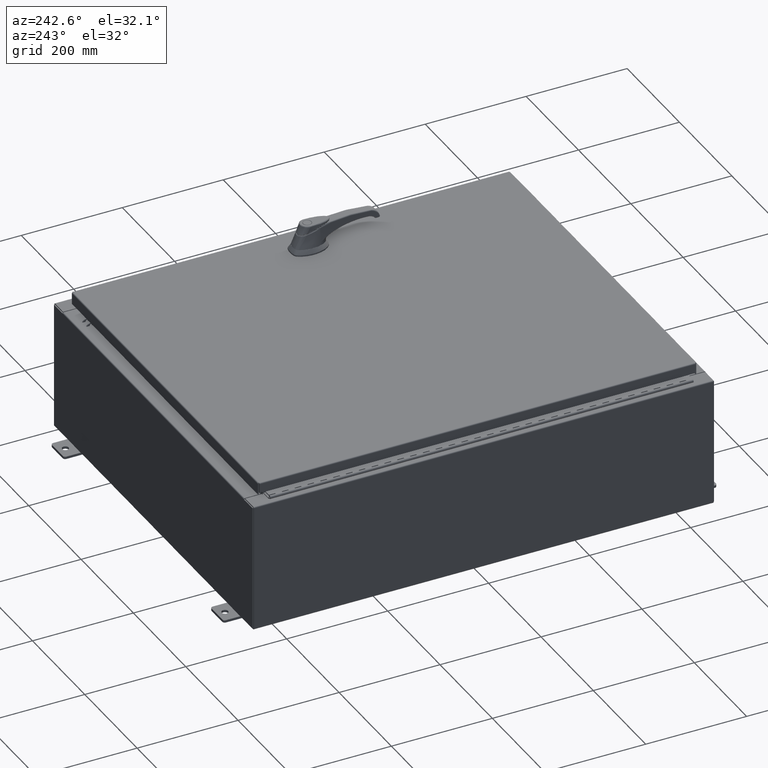
[diagram: clean part render]
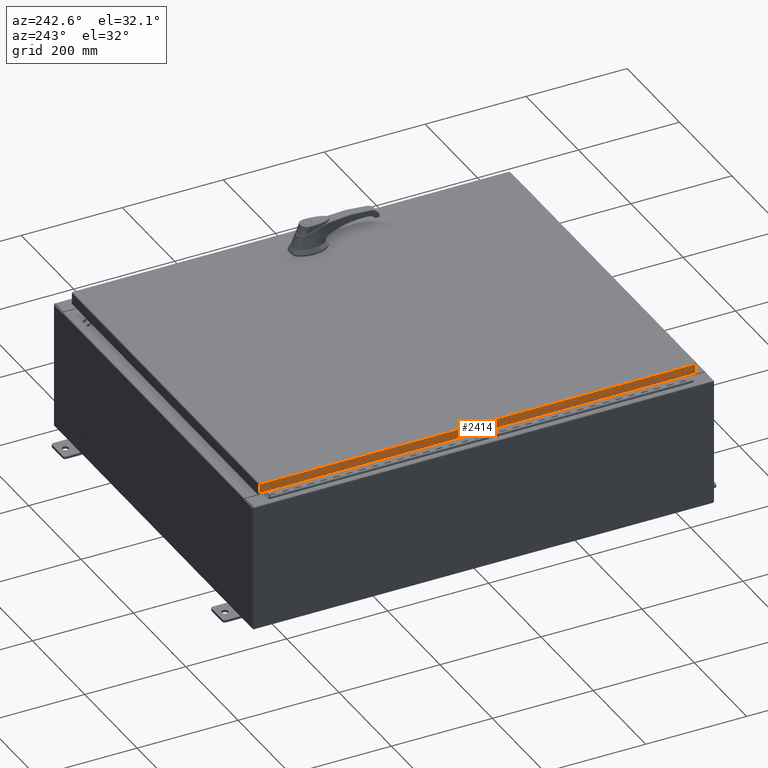
[diagram: same view with one face highlighted and labeled with its STEP entity id]
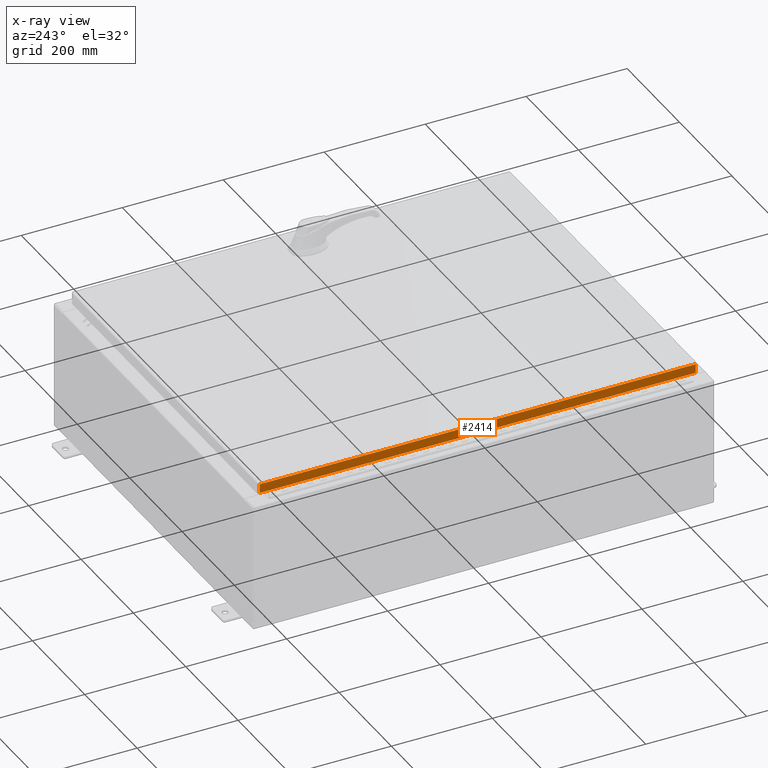
[diagram: x-ray of the same camera — body ghosted, the highlighted face saturated]
A machine part, auxiliary view. The second image highlights one B-rep face of the part: STEP entity #2414.
The next image is the same camera in x-ray: the body ghosted, the highlighted face saturated — about 0% of this face is hidden behind the body in this view.
In plain terms, the highlighted planar face has unit normal (1, 0, -0).
Its self-contained STEP definition (entity closure, byte-faithful):
#905 = EDGE_LOOP ( 'NONE', ( #20124, #60852, #11152, #17191 ) ) ;
#2414 = ADVANCED_FACE ( 'NONE', ( #12163 ), #44736, .F. ) ;
#5312 = CARTESIAN_POINT ( 'NONE',  ( -14.07800000000000700, 17.00515786437627200, 1.617215720887851800E-013 ) ) ;
#6678 = EDGE_CURVE ( 'NONE', #122592, #61293, #32694, .T. ) ;
#11152 = ORIENTED_EDGE ( 'NONE', *, *, #58809, .F. ) ;
#12163 = FACE_OUTER_BOUND ( 'NONE', #905, .T. ) ;
#14144 = CARTESIAN_POINT ( 'NONE',  ( -14.07800000000000800, -17.00515786437626500, -0.7949999999999996000 ) ) ;
#17191 = ORIENTED_EDGE ( 'NONE', *, *, #6678, .F. ) ;
#20124 = ORIENTED_EDGE ( 'NONE', *, *, #112585, .F. ) ;
#22717 = VECTOR ( 'NONE', #46805, 39.37007874015748100 ) ;
#27099 = CARTESIAN_POINT ( 'NONE',  ( -14.07800000000000700, 17.00515786437627200, -0.08770000000000004200 ) ) ;
#27748 = CARTESIAN_POINT ( 'NONE',  ( -14.07800000000000800, 17.00515786437627600, -0.7949999999999954900 ) ) ;
#28377 = CARTESIAN_POINT ( 'NONE',  ( -14.07800000000000800, -17.09400000000000100, -0.7949999999999997100 ) ) ;
#30070 = LINE ( 'NONE', #5312, #78027 ) ;
#32694 = LINE ( 'NONE', #51359, #106208 ) ;
#33421 = DIRECTION ( 'NONE',  ( 3.757920914826097400E-031, -1.000000000000000000, -1.107764513432648300E-045 ) ) ;
#40661 = CARTESIAN_POINT ( 'NONE',  ( -14.07800000000000700, -5.290401063892181200E-030, 4.297518939368256700E-014 ) ) ;
#43634 = VECTOR ( 'NONE', #33421, 39.37007874015748100 ) ;
#44736 = PLANE ( 'NONE',  #107273 ) ;
#45381 = EDGE_CURVE ( 'NONE', #93129, #71933, #30070, .T. ) ;
#46805 = DIRECTION ( 'NONE',  ( 4.379057701015054300E-047, 1.000000000000000000, 1.238552822680358400E-016 ) ) ;
#48145 = LINE ( 'NONE', #28377, #22717 ) ;
#51359 = CARTESIAN_POINT ( 'NONE',  ( -14.07800000000000700, -17.00515786437626900, -0.07469999999999976700 ) ) ;
#52768 = DIRECTION ( 'NONE',  ( -3.034122441942816500E-015, 6.982962677686265900E-015, -1.000000000000000000 ) ) ;
#53029 = DIRECTION ( 'NONE',  ( -3.034122441942816500E-015, 6.982962677686265900E-015, -1.000000000000000000 ) ) ;
#58809 = EDGE_CURVE ( 'NONE', #61293, #71933, #48145, .T. ) ;
#60852 = ORIENTED_EDGE ( 'NONE', *, *, #45381, .T. ) ;
#61293 = VERTEX_POINT ( 'NONE', #14144 ) ;
#62365 = CARTESIAN_POINT ( 'NONE',  ( -14.07800000000000700, -17.09400000000000100, -0.08770000000000004200 ) ) ;
#71933 = VERTEX_POINT ( 'NONE', #27748 ) ;
#72836 = DIRECTION ( 'NONE',  ( -3.034122441942816500E-015, 0.0000000000000000000, -1.000000000000000000 ) ) ;
#78027 = VECTOR ( 'NONE', #53029, 39.37007874015748100 ) ;
#91635 = LINE ( 'NONE', #62365, #43634 ) ;
#93129 = VERTEX_POINT ( 'NONE', #27099 ) ;
#95559 = DIRECTION ( 'NONE',  ( 1.000000000000000000, 3.757920914826096500E-031, -3.034122441942816500E-015 ) ) ;
#106208 = VECTOR ( 'NONE', #52768, 39.37007874015748100 ) ;
#107273 = AXIS2_PLACEMENT_3D ( 'NONE', #40661, #95559, #72836 ) ;
#111365 = CARTESIAN_POINT ( 'NONE',  ( -14.07800000000000700, -17.00515786437626900, -0.08770000000000007000 ) ) ;
#112585 = EDGE_CURVE ( 'NONE', #93129, #122592, #91635, .T. ) ;
#122592 = VERTEX_POINT ( 'NONE', #111365 ) ;